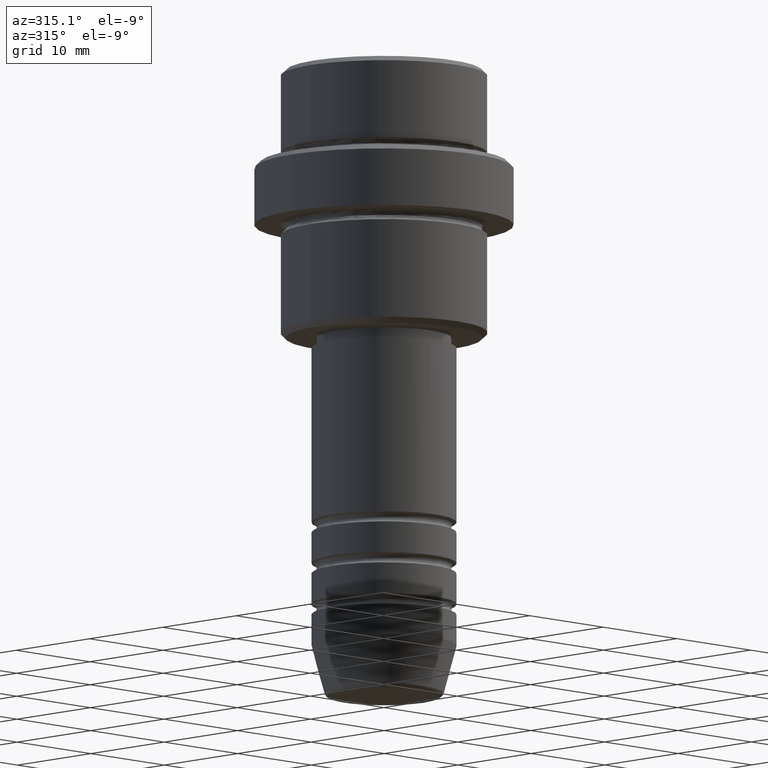
[diagram: clean part render]
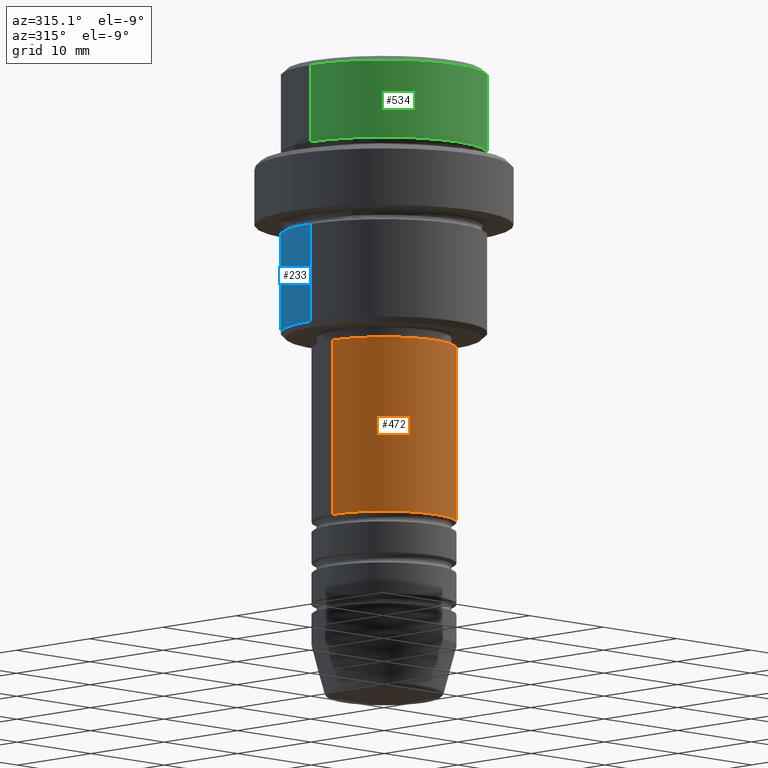
[diagram: same view with three faces highlighted in distinct colors, each labeled with its STEP entity id]
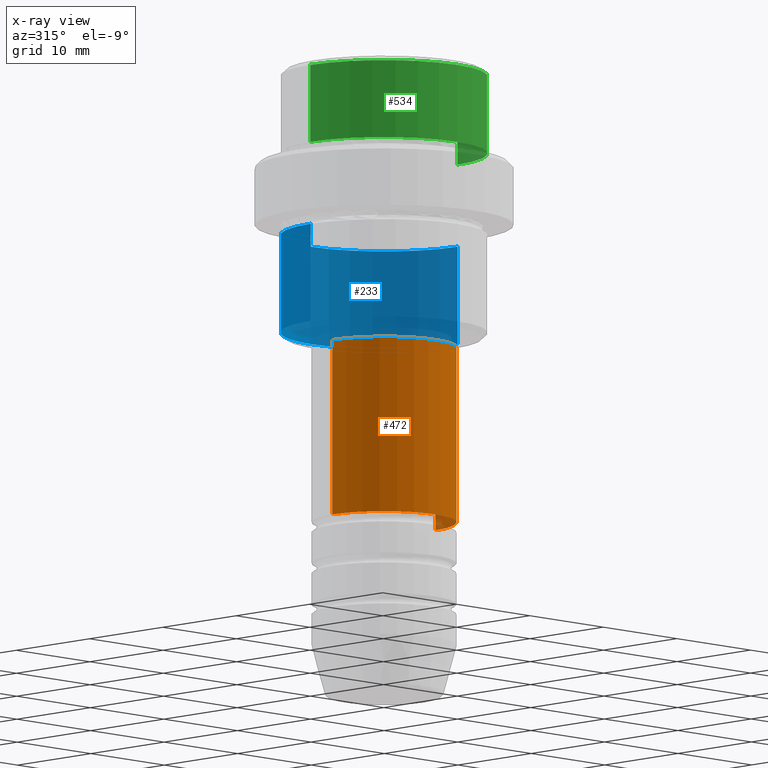
[diagram: x-ray of the same camera — body ghosted, the three highlighted faces saturated]
A machine part, auxiliary view with three faces highlighted in distinct colors.
The next image is the same camera in x-ray (body ghosted, the three faces saturated) — at least one of them is partly hidden behind the body in this view.
Their STEP definitions:

[orange] entity #472 — the highlighted cylindrical surface (partial cylindrical patch) has radius 7 mm, axis along (-0, -0, 1).
#25 = CIRCLE ( 'NONE', #674, 7.000000000000000000 ) ;
#99 = CIRCLE ( 'NONE', #905, 7.000000000000000000 ) ;
#149 = CARTESIAN_POINT ( 'NONE',  ( 7.000000000000000000, 0.000000000000000000, 0.000000000000000000 ) ) ;
#160 = ORIENTED_EDGE ( 'NONE', *, *, #1033, .T. ) ;
#230 = CARTESIAN_POINT ( 'NONE',  ( 0.000000000000000000, 0.000000000000000000, -43.99999999999989342 ) ) ;
#245 = DIRECTION ( 'NONE',  ( 1.000000000000000000, 0.000000000000000000, 0.000000000000000000 ) ) ;
#250 = EDGE_CURVE ( 'NONE', #363, #868, #1216, .T. ) ;
#283 = DIRECTION ( 'NONE',  ( 1.000000000000000000, 0.000000000000000000, 0.000000000000000000 ) ) ;
#363 = VERTEX_POINT ( 'NONE', #941 ) ;
#390 = VECTOR ( 'NONE', #780, 1000.000000000000000 ) ;
#391 = LINE ( 'NONE', #468, #1014 ) ;
#399 = CARTESIAN_POINT ( 'NONE',  ( 0.000000000000000000, 0.000000000000000000, -27.00000000000000355 ) ) ;
#468 = CARTESIAN_POINT ( 'NONE',  ( -7.000000000000000000, 8.572527594031473190E-16, 0.000000000000000000 ) ) ;
#472 = ADVANCED_FACE ( 'NONE', ( #1377 ), #502, .T. ) ;
#502 = CYLINDRICAL_SURFACE ( 'NONE', #1117, 7.000000000000000000 ) ;
#674 = AXIS2_PLACEMENT_3D ( 'NONE', #399, #1376, #709 ) ;
#709 = DIRECTION ( 'NONE',  ( 1.000000000000000000, 0.000000000000000000, 0.000000000000000000 ) ) ;
#711 = VERTEX_POINT ( 'NONE', #1338 ) ;
#724 = ORIENTED_EDGE ( 'NONE', *, *, #772, .F. ) ;
#746 = EDGE_LOOP ( 'NONE', ( #955, #160, #758, #724 ) ) ;
#758 = ORIENTED_EDGE ( 'NONE', *, *, #250, .T. ) ;
#772 = EDGE_CURVE ( 'NONE', #711, #868, #25, .T. ) ;
#780 = DIRECTION ( 'NONE',  ( -0.000000000000000000, -0.000000000000000000, 1.000000000000000000 ) ) ;
#822 = CARTESIAN_POINT ( 'NONE',  ( -7.000000000000000000, 8.572527594031473190E-16, -43.99999999999989342 ) ) ;
#868 = VERTEX_POINT ( 'NONE', #1362 ) ;
#874 = VERTEX_POINT ( 'NONE', #822 ) ;
#899 = DIRECTION ( 'NONE',  ( -0.000000000000000000, -0.000000000000000000, 1.000000000000000000 ) ) ;
#905 = AXIS2_PLACEMENT_3D ( 'NONE', #230, #899, #245 ) ;
#941 = CARTESIAN_POINT ( 'NONE',  ( 7.000000000000000000, 0.000000000000000000, -43.99999999999989342 ) ) ;
#955 = ORIENTED_EDGE ( 'NONE', *, *, #1406, .F. ) ;
#1014 = VECTOR ( 'NONE', #1028, 1000.000000000000000 ) ;
#1028 = DIRECTION ( 'NONE',  ( -0.000000000000000000, -0.000000000000000000, 1.000000000000000000 ) ) ;
#1033 = EDGE_CURVE ( 'NONE', #874, #363, #99, .T. ) ;
#1056 = CARTESIAN_POINT ( 'NONE',  ( 0.000000000000000000, 0.000000000000000000, 0.000000000000000000 ) ) ;
#1117 = AXIS2_PLACEMENT_3D ( 'NONE', #1056, #1253, #283 ) ;
#1216 = LINE ( 'NONE', #149, #390 ) ;
#1253 = DIRECTION ( 'NONE',  ( -0.000000000000000000, -0.000000000000000000, 1.000000000000000000 ) ) ;
#1338 = CARTESIAN_POINT ( 'NONE',  ( -7.000000000000000000, 8.572527594031473190E-16, -27.00000000000000355 ) ) ;
#1362 = CARTESIAN_POINT ( 'NONE',  ( 7.000000000000000000, 0.000000000000000000, -27.00000000000000355 ) ) ;
#1376 = DIRECTION ( 'NONE',  ( -0.000000000000000000, -0.000000000000000000, 1.000000000000000000 ) ) ;
#1377 = FACE_OUTER_BOUND ( 'NONE', #746, .T. ) ;
#1406 = EDGE_CURVE ( 'NONE', #874, #711, #391, .T. ) ;

[blue] entity #233 — the highlighted cylindrical surface (partial cylindrical patch) has radius 10 mm, axis along (-0, -0, 1).
#47 = CIRCLE ( 'NONE', #1140, 10.00000000000000000 ) ;
#80 = VERTEX_POINT ( 'NONE', #431 ) ;
#112 = LINE ( 'NONE', #1107, #1141 ) ;
#127 = CARTESIAN_POINT ( 'NONE',  ( 0.000000000000000000, 0.000000000000000000, -25.50000000000001421 ) ) ;
#178 = CARTESIAN_POINT ( 'NONE',  ( 10.00000000000000000, 0.000000000000000000, -25.50000000000001421 ) ) ;
#210 = DIRECTION ( 'NONE',  ( 1.000000000000000000, 0.000000000000000000, 0.000000000000000000 ) ) ;
#233 = ADVANCED_FACE ( 'NONE', ( #1240 ), #920, .T. ) ;
#268 = DIRECTION ( 'NONE',  ( -0.000000000000000000, -0.000000000000000000, 1.000000000000000000 ) ) ;
#325 = CARTESIAN_POINT ( 'NONE',  ( 0.000000000000000000, 0.000000000000000000, -16.00000000000000000 ) ) ;
#343 = DIRECTION ( 'NONE',  ( -0.000000000000000000, -0.000000000000000000, 1.000000000000000000 ) ) ;
#351 = VERTEX_POINT ( 'NONE', #178 ) ;
#353 = VECTOR ( 'NONE', #1196, 1000.000000000000000 ) ;
#377 = CIRCLE ( 'NONE', #806, 10.00000000000000000 ) ;
#431 = CARTESIAN_POINT ( 'NONE',  ( -10.00000000000000000, 1.224646799147353256E-15, -25.50000000000001421 ) ) ;
#452 = DIRECTION ( 'NONE',  ( -0.000000000000000000, -0.000000000000000000, 1.000000000000000000 ) ) ;
#519 = EDGE_LOOP ( 'NONE', ( #555, #841, #1026, #1299 ) ) ;
#530 = VERTEX_POINT ( 'NONE', #966 ) ;
#532 = EDGE_CURVE ( 'NONE', #351, #691, #1290, .T. ) ;
#551 = EDGE_CURVE ( 'NONE', #691, #530, #377, .T. ) ;
#555 = ORIENTED_EDGE ( 'NONE', *, *, #680, .T. ) ;
#680 = EDGE_CURVE ( 'NONE', #351, #80, #47, .T. ) ;
#691 = VERTEX_POINT ( 'NONE', #1324 ) ;
#806 = AXIS2_PLACEMENT_3D ( 'NONE', #325, #343, #210 ) ;
#841 = ORIENTED_EDGE ( 'NONE', *, *, #895, .T. ) ;
#895 = EDGE_CURVE ( 'NONE', #80, #530, #112, .T. ) ;
#902 = DIRECTION ( 'NONE',  ( -0.000000000000000000, -0.000000000000000000, 1.000000000000000000 ) ) ;
#920 = CYLINDRICAL_SURFACE ( 'NONE', #954, 10.00000000000000000 ) ;
#954 = AXIS2_PLACEMENT_3D ( 'NONE', #1326, #268, #1116 ) ;
#966 = CARTESIAN_POINT ( 'NONE',  ( -10.00000000000000000, 1.224646799147353256E-15, -16.00000000000000000 ) ) ;
#1003 = DIRECTION ( 'NONE',  ( -1.000000000000000000, 0.000000000000000000, 0.000000000000000000 ) ) ;
#1026 = ORIENTED_EDGE ( 'NONE', *, *, #551, .F. ) ;
#1071 = CARTESIAN_POINT ( 'NONE',  ( 10.00000000000000000, 0.000000000000000000, 0.000000000000000000 ) ) ;
#1107 = CARTESIAN_POINT ( 'NONE',  ( -10.00000000000000000, 1.224646799147353256E-15, 0.000000000000000000 ) ) ;
#1116 = DIRECTION ( 'NONE',  ( 1.000000000000000000, 0.000000000000000000, 0.000000000000000000 ) ) ;
#1140 = AXIS2_PLACEMENT_3D ( 'NONE', #127, #902, #1003 ) ;
#1141 = VECTOR ( 'NONE', #452, 1000.000000000000000 ) ;
#1196 = DIRECTION ( 'NONE',  ( -0.000000000000000000, -0.000000000000000000, 1.000000000000000000 ) ) ;
#1240 = FACE_OUTER_BOUND ( 'NONE', #519, .T. ) ;
#1290 = LINE ( 'NONE', #1071, #353 ) ;
#1299 = ORIENTED_EDGE ( 'NONE', *, *, #532, .F. ) ;
#1324 = CARTESIAN_POINT ( 'NONE',  ( 10.00000000000000000, 0.000000000000000000, -16.00000000000000000 ) ) ;
#1326 = CARTESIAN_POINT ( 'NONE',  ( 0.000000000000000000, 0.000000000000000000, 0.000000000000000000 ) ) ;

[green] entity #534 — the highlighted cylindrical surface (partial cylindrical patch) has radius 10 mm, axis along (-0, -0, 1).
#22 = DIRECTION ( 'NONE',  ( -0.000000000000000000, -0.000000000000000000, 1.000000000000000000 ) ) ;
#29 = VECTOR ( 'NONE', #798, 1000.000000000000000 ) ;
#109 = CARTESIAN_POINT ( 'NONE',  ( 0.000000000000000000, 0.000000000000000000, 0.000000000000000000 ) ) ;
#153 = LINE ( 'NONE', #592, #218 ) ;
#161 = CIRCLE ( 'NONE', #881, 9.999999999999998224 ) ;
#199 = ORIENTED_EDGE ( 'NONE', *, *, #1157, .F. ) ;
#218 = VECTOR ( 'NONE', #477, 1000.000000000000000 ) ;
#357 = CARTESIAN_POINT ( 'NONE',  ( -9.999999999999998224, 1.224646799147353059E-15, -0.5000000000000108802 ) ) ;
#368 = CARTESIAN_POINT ( 'NONE',  ( -9.999999999999998224, 1.224646799147353059E-15, 0.000000000000000000 ) ) ;
#396 = ORIENTED_EDGE ( 'NONE', *, *, #490, .T. ) ;
#435 = CARTESIAN_POINT ( 'NONE',  ( 0.000000000000000000, 0.000000000000000000, -0.5000000000000108802 ) ) ;
#441 = CYLINDRICAL_SURFACE ( 'NONE', #672, 9.999999999999998224 ) ;
#477 = DIRECTION ( 'NONE',  ( -0.000000000000000000, -0.000000000000000000, 1.000000000000000000 ) ) ;
#490 = EDGE_CURVE ( 'NONE', #673, #610, #161, .T. ) ;
#524 = CARTESIAN_POINT ( 'NONE',  ( -9.999999999999998224, 1.224646799147353059E-15, -7.999999999999998224 ) ) ;
#529 = DIRECTION ( 'NONE',  ( 0.000000000000000000, 0.000000000000000000, -1.000000000000000000 ) ) ;
#534 = ADVANCED_FACE ( 'NONE', ( #748 ), #441, .T. ) ;
#535 = VERTEX_POINT ( 'NONE', #889 ) ;
#592 = CARTESIAN_POINT ( 'NONE',  ( 9.999999999999998224, 0.000000000000000000, 0.000000000000000000 ) ) ;
#610 = VERTEX_POINT ( 'NONE', #357 ) ;
#645 = DIRECTION ( 'NONE',  ( 1.000000000000000000, 0.000000000000000000, 0.000000000000000000 ) ) ;
#665 = DIRECTION ( 'NONE',  ( -0.000000000000000000, -0.000000000000000000, 1.000000000000000000 ) ) ;
#672 = AXIS2_PLACEMENT_3D ( 'NONE', #109, #665, #645 ) ;
#673 = VERTEX_POINT ( 'NONE', #1103 ) ;
#707 = DIRECTION ( 'NONE',  ( 1.000000000000000000, 0.000000000000000000, 0.000000000000000000 ) ) ;
#748 = FACE_OUTER_BOUND ( 'NONE', #1213, .T. ) ;
#798 = DIRECTION ( 'NONE',  ( -0.000000000000000000, -0.000000000000000000, 1.000000000000000000 ) ) ;
#881 = AXIS2_PLACEMENT_3D ( 'NONE', #435, #529, #974 ) ;
#886 = ORIENTED_EDGE ( 'NONE', *, *, #1400, .T. ) ;
#889 = CARTESIAN_POINT ( 'NONE',  ( 9.999999999999998224, 0.000000000000000000, -7.999999999999998224 ) ) ;
#968 = AXIS2_PLACEMENT_3D ( 'NONE', #1139, #22, #707 ) ;
#974 = DIRECTION ( 'NONE',  ( 1.000000000000000000, 0.000000000000000000, 0.000000000000000000 ) ) ;
#1080 = CIRCLE ( 'NONE', #968, 9.999999999999998224 ) ;
#1098 = EDGE_CURVE ( 'NONE', #1218, #535, #1080, .T. ) ;
#1103 = CARTESIAN_POINT ( 'NONE',  ( 9.999999999999998224, 0.000000000000000000, -0.5000000000000108802 ) ) ;
#1139 = CARTESIAN_POINT ( 'NONE',  ( 0.000000000000000000, 0.000000000000000000, -7.999999999999998224 ) ) ;
#1157 = EDGE_CURVE ( 'NONE', #1218, #610, #1335, .T. ) ;
#1213 = EDGE_LOOP ( 'NONE', ( #199, #1334, #886, #396 ) ) ;
#1218 = VERTEX_POINT ( 'NONE', #524 ) ;
#1334 = ORIENTED_EDGE ( 'NONE', *, *, #1098, .T. ) ;
#1335 = LINE ( 'NONE', #368, #29 ) ;
#1400 = EDGE_CURVE ( 'NONE', #535, #673, #153, .T. ) ;